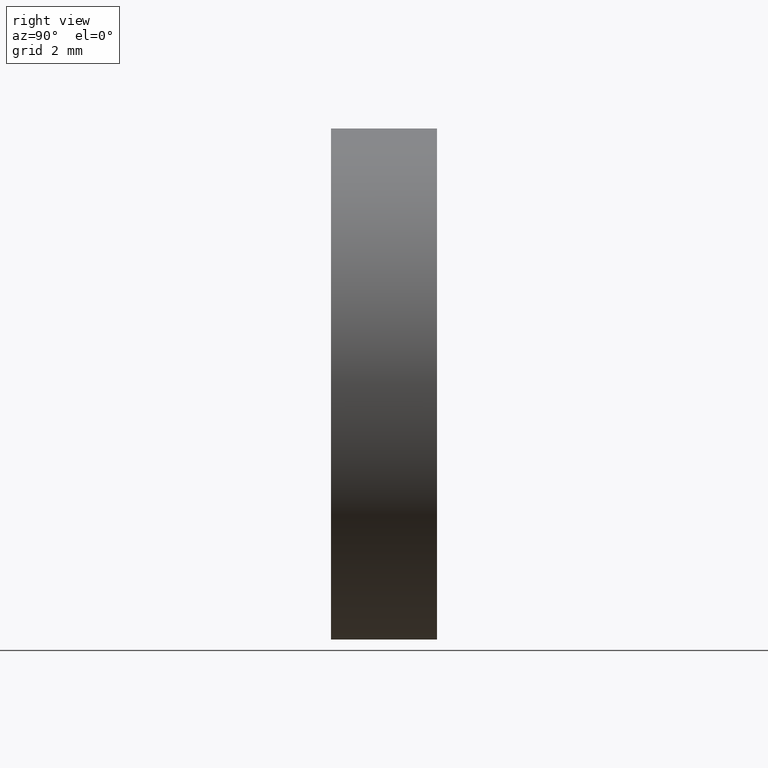
[diagram: clean part render]
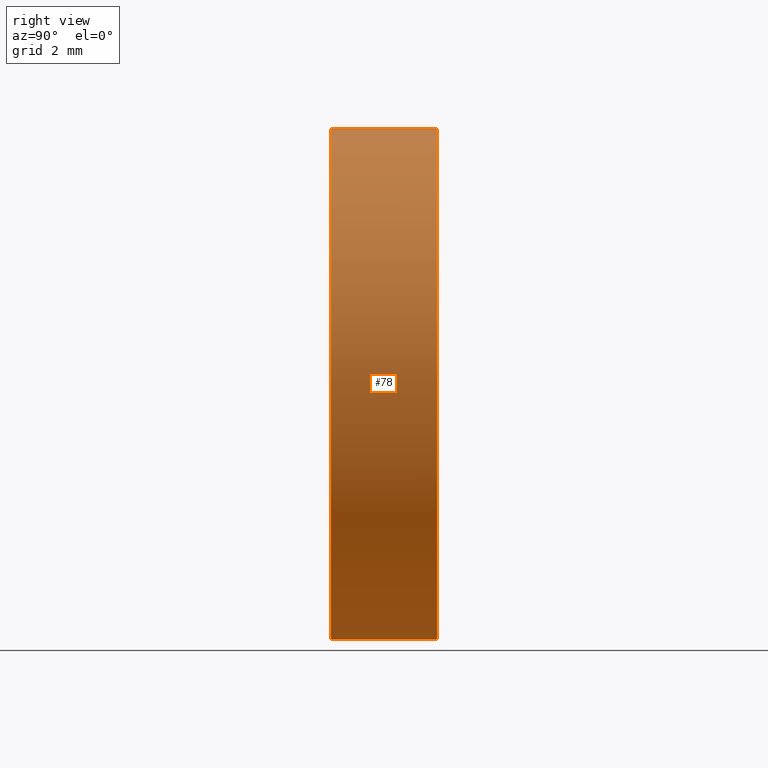
[diagram: same view with one face highlighted and labeled with its STEP entity id]
A machine part, right view. The second image highlights one B-rep face of the part: STEP entity #78.
In plain terms, the highlighted cylindrical surface (bore or boss wall) has radius 7.25 mm, axis along (0, 1, 0).
Its self-contained STEP definition (entity closure, byte-faithful):
#17=CYLINDRICAL_SURFACE('',#90,7.25);
#21=FACE_BOUND('',#37,.T.);
#27=FACE_OUTER_BOUND('',#36,.T.);
#36=EDGE_LOOP('',(#66));
#37=EDGE_LOOP('',(#67));
#46=CIRCLE('',#91,7.25);
#47=CIRCLE('',#92,7.25);
#52=VERTEX_POINT('',#134);
#53=VERTEX_POINT('',#136);
#58=EDGE_CURVE('',#52,#52,#46,.T.);
#59=EDGE_CURVE('',#53,#53,#47,.T.);
#66=ORIENTED_EDGE('',*,*,#58,.F.);
#67=ORIENTED_EDGE('',*,*,#59,.F.);
#78=ADVANCED_FACE('',(#27,#21),#17,.T.);
#90=AXIS2_PLACEMENT_3D('',#133,#111,#112);
#91=AXIS2_PLACEMENT_3D('',#135,#113,#114);
#92=AXIS2_PLACEMENT_3D('',#137,#115,#116);
#111=DIRECTION('center_axis',(0.,1.,0.));
#112=DIRECTION('ref_axis',(1.,0.,0.));
#113=DIRECTION('center_axis',(0.,1.,0.));
#114=DIRECTION('ref_axis',(1.,0.,0.));
#115=DIRECTION('center_axis',(0.,-1.,0.));
#116=DIRECTION('ref_axis',(1.,0.,0.));
#133=CARTESIAN_POINT('Origin',(0.,0.,0.));
#134=CARTESIAN_POINT('',(-7.25,3.,8.87868929381831E-16));
#135=CARTESIAN_POINT('Origin',(0.,3.,0.));
#136=CARTESIAN_POINT('',(-7.25,0.,8.87868929381831E-16));
#137=CARTESIAN_POINT('Origin',(0.,0.,0.));